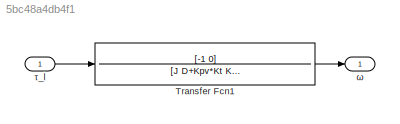
MODEL slx_5bc48a4db4f1
KIND model
CONFIG AbsTol = auto
CONFIG EnableMultiTasking = off
CONFIG FixedStep = auto
CONFIG MaxStep = auto
CONFIG MinStep = auto
CONFIG RelTol = 1e-3
CONFIG SampleTimeConstraint = Unconstrained
CONFIG Solver = VariableStepAuto
CONFIG SolverName = VariableStepAuto
CONFIG StartTime = 0.0
CONFIG StopTime = 10.0
BLOCK [TransferFcn] Transfer Fcn1
  Denominator = [J D+Kpv*Kt Kiv*Kt]
  Numerator = [-1 0]
BLOCK [Inport] τ_l
  IconDisplay = Port number
BLOCK [Outport] ω
  IconDisplay = Port number
LINE Transfer Fcn1:1 -> ω:1
LINE τ_l:1 -> Transfer Fcn1:1
